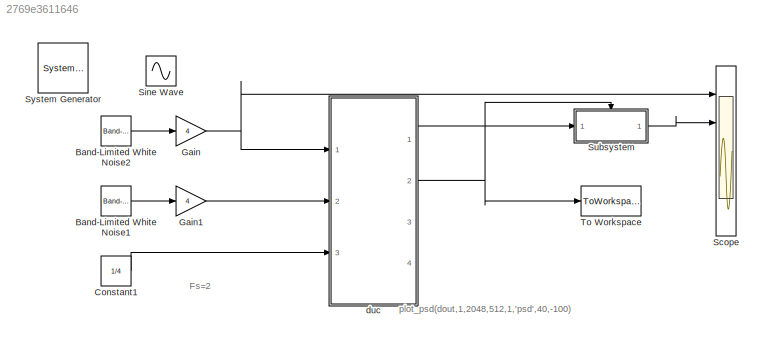
MODEL slx_2769e3611646
KIND model
CONFIG AbsTol = auto
CONFIG FixedStep = auto
CONFIG MaxStep = auto
CONFIG MinStep = auto
CONFIG RelTol = 1e-3
CONFIG SampleTimeConstraint = Unconstrained
CONFIG Solver = ode45
CONFIG SolverMode = Auto
CONFIG SolverName = ode45
CONFIG StartTime = 0.0
CONFIG StopTime = 16*4100
BLOCK [Reference]  System Generator  REF=xbsIndex_r4/ System Generator
  AttributesFormatString = System\nGenerator
  Impl_file = Vivado Implementation Defaults
  Ports = []
  SourceBlock = xbsIndex_r4/ System Generator
  SourceType = Xilinx System Generator Block
  Synth_file = Vivado Synthesis Defaults
  Tag = genX
  UserDataPersistent = on
  block_type = sysgen
  clock_wrapper = Clock Enables
  core_generation = According to Block Masks
  dbl_ovrd = According to Block Masks
  dcm_input_clock_period = 10
  deprecated_control = off
  directory = ./netlist
  eval_field = 0
  has_advanced_control = 0
  incr_netlist = off
  infoedit = System Generator
  package = clg484
  part = xc7z020
  proj_type = Vivado
  run_coregen = off
  sg_icon_stat = 50,50,0,0,token,white,0,58c5b5770fe5f7c311f53dbc6e73f0f6,right,,[ ],[ ]
  sg_mask_display = fprintf('','COMMENT: begin icon graphics');\npatch([0 50 50 0 0 ],[0 0 50 50 0 ],[1 1 1 ]);\npatch([1.6375 16.81 27.31 37.81 48.31 27.31 12.1375 1.6375 ],[36.655 36.655 47.155 36.655 47.155 47.155 47.155 36.655 ],[0.933333 0.203922 0.141176 ]);\npatch([12.1375 27.31 16.81 1.6375 12.1375 ],[26.155 26.155 36.655 36.655 26.155 ],[0.698039 0.0313725 0.219608 ]);\npatch([1.6375 16.81 27.31 12.1375 1.6375 ]...<+327ch>
  sggui_pos = 326,310,464,400
  simulink_period = 1
  speed = -1
  synthesis_tool = Vivado
  sysclk_period = 5
  testbench = off
  trim_vbits = Everywhere in SubSystem
  xilinxfamily = zynq
BLOCK [Reference] Band-Limited White Noise1  REF=simulink/Sources/Band-Limited
White Noise
  Cov = [0.1]
  Ports = [0, 1]
  SourceBlock = simulink/Sources/Band-Limited\nWhite Noise
  SourceType = Band-Limited White Noise.
  Ts = 16
  VectorParams1D = on
  seed = [1]
BLOCK [Reference] Band-Limited White Noise2  REF=simulink/Sources/Band-Limited
White Noise
  Cov = [0.1]
  Ports = [0, 1]
  SourceBlock = simulink/Sources/Band-Limited\nWhite Noise
  SourceType = Band-Limited White Noise.
  Ts = 16
  VectorParams1D = on
  seed = [2]
BLOCK [Constant] Constant1
  SampleTime = 16
  Value = 1/4
BLOCK [Gain] Gain
  Gain = 4
  OutDataTypeStr = Inherit: Inherit via internal rule
  ParamDataTypeStr = Inherit: Inherit via internal rule
  SaturateOnIntegerOverflow = off
BLOCK [Gain] Gain1
  Gain = 4
  OutDataTypeStr = Inherit: Inherit via internal rule
  ParamDataTypeStr = Inherit: Inherit via internal rule
  SaturateOnIntegerOverflow = off
BLOCK [Scope] Scope
  Floating = off
  LimitDataPoints = off
  NumInputPorts = 5
  Ports = [5]
  YMax = 5~5~5~5~5
  YMin = -5~-5~-5~-5~-5
  ZoomMode = xonly
BLOCK [Sin] Sine Wave
  Amplitude = 1.99
  Ports = [0, 1]
  SampleTime = 16
  Samples = 32
  SineType = Sample based
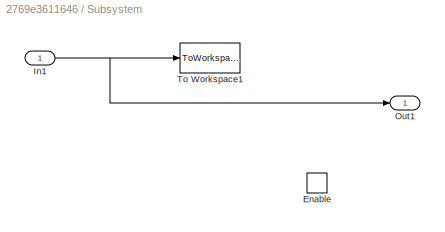
BLOCK [SubSystem] Subsystem
  Ports = [1, 1, 1]
  RequestExecContextInheritance = off
BLOCK [EnablePort] Subsystem/Enable
  Ports = []
BLOCK [Inport] Subsystem/In1
  IconDisplay = Port number
BLOCK [Outport] Subsystem/Out1
  IconDisplay = Port number
BLOCK [ToWorkspace] Subsystem/To Workspace1
  MaxDataPoints = inf
  Ports = [1]
  SampleTime = 1
  Save2DSignal = 3-D array (concatenate along third dimension)
  VariableName = dout
BLOCK [ToWorkspace] To Workspace
  FixptAsFi = on
  MaxDataPoints = inf
  Ports = [1]
  SampleTime = 1
  Save2DSignal = 3-D array (concatenate along third dimension)
  SaveFormat = Structure
  VariableName = vld
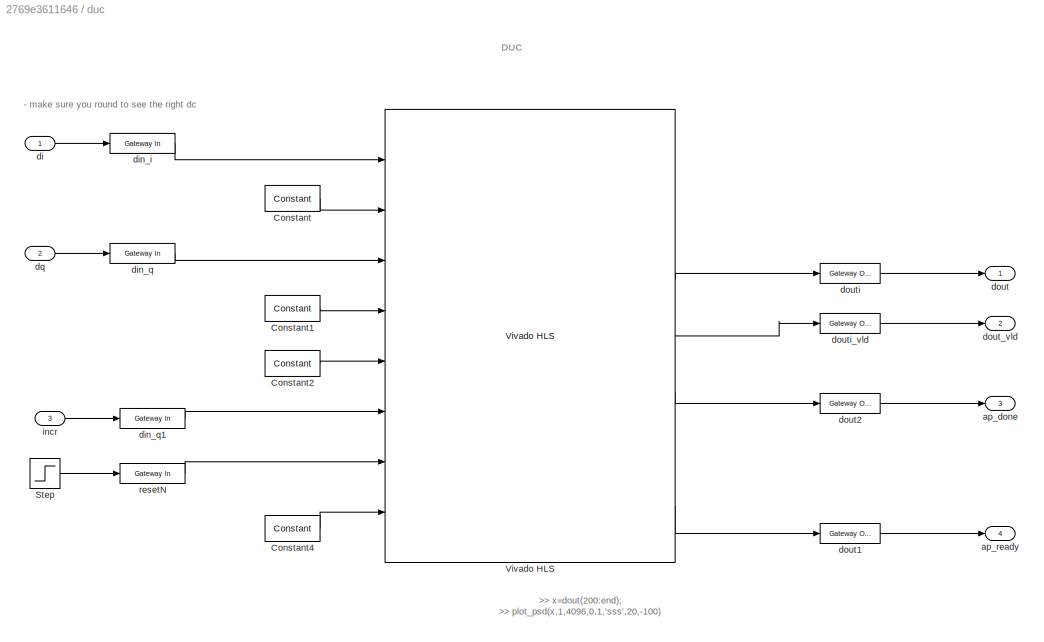
BLOCK [SubSystem] duc
  Ports = [3, 4]
  RequestExecContextInheritance = off
BLOCK [Reference] duc/Constant  REF=xbsIndex_r4/Constant
  Ports = [0, 1]
  SourceBlock = xbsIndex_r4/Constant
  SourceType = Xilinx Constant Block Block
  arith_type = Boolean
  bin_pt = 14
  block_type = constant
  carry = CIN
  const = 1
  dbl_ovrd = off
  dsp48_infoedit = The use of this block for DSP48 instructions is deprecated.  Please use the Opmode block.
  equ = P=C
  exp_width = 8
  explicit_period = on
  frac_width = 24
  gui_display_data_type = Boolean
  has_advanced_control = 0
  inp1 = P
  inp2 = PCIN>>17
  n_bits = 16
  opr = +
  opselect = C
  period = 1
  preci_type = Single
  sg_icon_stat = 55,26,0,1,white,blue,0,1c72b5be,right,,[ ],[ ]
  sg_mask_display = fprintf('','COMMENT: begin icon graphics');\npatch([0 55 55 0 0 ],[0 0 26 26 0 ],[0.77 0.82 0.91 ]);\nplot([0 55 55 0 0 ],[0 0 26 26 0 ]);\npatch([20.325 24.66 27.66 30.66 33.66 27.66 23.325 20.325 ],[16.33 16.33 19.33 16.33 19.33 19.33 19.33 16.33 ],[1 1 1 ]);\npatch([23.325 27.66 24.66 20.325 23.325 ],[13.33 13.33 16.33 16.33 13.33 ],[0.931 0.946 0.973 ]);\npatch([20.325 24.66 27.66 23.325 20.325 ],[...<+323ch>  <repeated x4 — deduplicated; at blocks: Constant, Constant1, Constant2, Constant4>
  sggui_pos = -1,-1,-1,-1
BLOCK [Reference] duc/Constant1  REF=xbsIndex_r4/Constant
  Ports = [0, 1]
  SourceBlock = xbsIndex_r4/Constant
  SourceType = Xilinx Constant Block Block
  arith_type = Boolean
  bin_pt = 14
  block_type = constant
  carry = CIN
  const = 1
  dbl_ovrd = off
  dsp48_infoedit = The use of this block for DSP48 instructions is deprecated.  Please use the Opmode block.
  equ = P=C
  exp_width = 8
  explicit_period = on
  frac_width = 24
  gui_display_data_type = Boolean
  has_advanced_control = 0
  inp1 = P
  inp2 = PCIN>>17
  n_bits = 16
  opr = +
  opselect = C
  period = 1
  preci_type = Single
  sg_icon_stat = 55,26,0,1,white,blue,0,1c72b5be,right,,[ ],[ ]
  sggui_pos = -1,-1,-1,-1
BLOCK [Reference] duc/Constant2  REF=xbsIndex_r4/Constant
  Ports = [0, 1]
  SourceBlock = xbsIndex_r4/Constant
  SourceType = Xilinx Constant Block Block
  arith_type = Boolean
  bin_pt = 14
  block_type = constant
  carry = CIN
  const = 1
  dbl_ovrd = off
  dsp48_infoedit = The use of this block for DSP48 instructions is deprecated.  Please use the Opmode block.
  equ = P=C
  exp_width = 8
  explicit_period = on
  frac_width = 24
  gui_display_data_type = Boolean
  has_advanced_control = 0
  inp1 = P
  inp2 = PCIN>>17
  n_bits = 16
  opr = +
  opselect = C
  period = 1
  preci_type = Single
  sg_icon_stat = 55,26,0,1,white,blue,0,1c72b5be,right,,[ ],[ ]
  sggui_pos = -1,-1,-1,-1
BLOCK [Reference] duc/Constant4  REF=xbsIndex_r4/Constant
  Ports = [0, 1]
  SourceBlock = xbsIndex_r4/Constant
  SourceType = Xilinx Constant Block Block
  arith_type = Boolean
  bin_pt = 14
  block_type = constant
  carry = CIN
  const = 1
  dbl_ovrd = off
  dsp48_infoedit = The use of this block for DSP48 instructions is deprecated.  Please use the Opmode block.
  equ = P=C
  exp_width = 8
  explicit_period = on
  frac_width = 24
  gui_display_data_type = Boolean
  has_advanced_control = 0
  inp1 = P
  inp2 = PCIN>>17
  n_bits = 16
  opr = +
  opselect = C
  period = 1
  preci_type = Single
  sg_icon_stat = 55,26,0,1,white,blue,0,1c72b5be,right,,[ ],[ ]
  sggui_pos = -1,-1,-1,-1
BLOCK [Step] duc/Step
  SampleTime = 1
  Time = 10
BLOCK [Reference] duc/Vivado HLS  REF=xbsIndex_r4/Vivado HLS
  Ports = [8, 7]
  SourceBlock = xbsIndex_r4/Vivado HLS
  SourceType = Xilinx High Level Synthesis Block
  anytable = '<path>'
  block_type = hls
  display_datatype = on
  fast_sim = on
  has_advanced_control = 0
  infoedit = This block allows including C,C++ and SystemC source files in System Generator for DSP designs.
  latency = 1
  model_file_path = ''
  rate_propagation_method = Simulink system period
  sg_icon_stat = 290,453,8,7,white,blue,0,630232e8,right,,[ ],[ ]
  sg_mask_display = fprintf('','COMMENT: begin icon graphics');\npatch([0 290 290 0 0 ],[0 0 453 453 0 ],[0.77 0.82 0.91 ]);\nplot([0 290 290 0 0 ],[0 0 453 453 0 ]);\npatch([53.775 113.02 154.02 195.02 236.02 154.02 94.775 53.775 ],[271.51 271.51 312.51 271.51 312.51 312.51 312.51 271.51 ],[1 1 1 ]);\npatch([94.775 154.02 113.02 53.775 94.775 ],[230.51 230.51 271.51 271.51 230.51 ],[0.931 0.946 0.973 ]);\npatch([53.775 1...<+1255ch>
  sggui_pos = 988,435,328,283
BLOCK [Outport] duc/ap_done
  IconDisplay = Port number
  Port = 3
BLOCK [Outport] duc/ap_ready
  IconDisplay = Port number
  Port = 4
BLOCK [Inport] duc/di
  IconDisplay = Port number
BLOCK [Reference] duc/din_i  REF=xbsIndex_r4/Gateway In
  ADCChannel = '1'
  LOCs = {}
  Ports = [1, 1]
  SourceBlock = xbsIndex_r4/Gateway In
  SourceType = Xilinx Gateway In Block
  UseAsADC = off
  address_offset = hex2dec('00')
  arith_type = Signed  (2's comp)
  automatic_assignment = on
  bin_pt = 14
  block_type = gatewayin
  columns = 1
  dbl_ovrd = off
  exp_width = 8
  frac_width = 24
  gui_display_data_type = Fixed-point
  has_advanced_control = 0
  hdl_port = on
  infoedit = Gateway in block.  Converts inputs of type Simulink integer, single, double and fixed-point to  Xilinx fixed-point or floating-point data type.<br><br>Hardware notes:  In hardware these blocks become top level input ports.  <repeated x4 — deduplicated; at blocks: din_i, din_q, din_q1, resetN>
  inherit_from_input = off
  interface = None
  intf_description = ''
  intf_name = ''
  io_standard = {}
  locs_specified = off
  n_bits = 24
  overflow = Wrap
  period = 1
  preci_type = Single
  quantization = Round  (unbiased: +/- Inf)
  rows = 1
  sg_icon_stat = 65,20,1,1,white,yellow,1,00d3666e,right,,[ ],[ ]
  sg_mask_display = fprintf('','COMMENT: begin icon graphics');\npatch([0 65 65 0 0 ],[0 0 20 20 0 ],[0.95 0.93 0.65 ]);\nplot([0 65 65 0 0 ],[0 0 20 20 0 ]);\npatch([27.55 30.44 32.44 34.44 36.44 32.44 29.55 27.55 ],[12.22 12.22 14.22 12.22 14.22 14.22 14.22 12.22 ],[1 1 1 ]);\npatch([29.55 32.44 30.44 27.55 29.55 ],[10.22 10.22 12.22 12.22 10.22 ],[0.985 0.979 0.895 ]);\npatch([27.55 30.44 32.44 29.55 27.55 ],[8.22 8.22...<+383ch>  <repeated x4 — deduplicated; at blocks: din_i, din_q, din_q1, resetN>
  sggui_pos = -1,-1,-1,-1
  timing_constraint = None
  xl_area = [0,0,0,0,0,0,0]
  xl_use_area = off
BLOCK [Reference] duc/din_q  REF=xbsIndex_r4/Gateway In
  ADCChannel = '1'
  LOCs = {}
  Ports = [1, 1]
  SourceBlock = xbsIndex_r4/Gateway In
  SourceType = Xilinx Gateway In Block
  UseAsADC = off
  address_offset = hex2dec('00')
  arith_type = Signed  (2's comp)
  automatic_assignment = on
  bin_pt = 14
  block_type = gatewayin
  columns = 1
  dbl_ovrd = off
  exp_width = 8
  frac_width = 24
  gui_display_data_type = Fixed-point
  has_advanced_control = 0
  hdl_port = on
  inherit_from_input = off
  interface = None
  intf_description = ''
  intf_name = ''
  io_standard = {}
  locs_specified = off
  n_bits = 24
  overflow = Wrap
  period = 1
  preci_type = Single
  quantization = Round  (unbiased: +/- Inf)
  rows = 1
  sg_icon_stat = 65,20,1,1,white,yellow,1,00d3666e,right,,[ ],[ ]
  sggui_pos = -1,-1,-1,-1
  timing_constraint = None
  xl_area = [0,0,0,0,0,0,0]
  xl_use_area = off
BLOCK [Reference] duc/din_q1  REF=xbsIndex_r4/Gateway In
  ADCChannel = '1'
  LOCs = {}
  Ports = [1, 1]
  SourceBlock = xbsIndex_r4/Gateway In
  SourceType = Xilinx Gateway In Block
  UseAsADC = off
  address_offset = hex2dec('00')
  arith_type = Signed  (2's comp)
  automatic_assignment = on
  bin_pt = 31
  block_type = gatewayin
  columns = 1
  dbl_ovrd = off
  exp_width = 8
  frac_width = 24
  gui_display_data_type = Fixed-point
  has_advanced_control = 0
  hdl_port = on
  inherit_from_input = off
  interface = None
  intf_description = ''
  intf_name = ''
  io_standard = {}
  locs_specified = off
  n_bits = 32
  overflow = Wrap
  period = 1
  preci_type = Single
  quantization = Round  (unbiased: +/- Inf)
  rows = 1
  sg_icon_stat = 65,20,1,1,white,yellow,1,00d3666e,right,,[ ],[ ]
  sggui_pos = -1,-1,-1,-1
  timing_constraint = None
  xl_area = [0,0,0,0,0,0,0]
  xl_use_area = off
BLOCK [Outport] duc/dout
  IconDisplay = Port number
BLOCK [Reference] duc/dout1  REF=xbsIndex_r4/Gateway Out
  DACChannel = '1'
  LOCs = {}
  Ports = [1, 1]
  SourceBlock = xbsIndex_r4/Gateway Out
  SourceType = Xilinx Gateway Out Block
  UseAsDAC = off
  address_offset = hex2dec('00')
  automatic_assignment = on
  block_type = gatewayout
  columns = 1
  has_advanced_control = 0
  hdl_port = on
  infoedit = Gateway out block.  Converts Xilinx fixed-point or floating-point type inputs into ouputs of type Simulink integer, single, double, or fixed-point.<br><br>Hardware notes:  In hardware these blocks become top level output ports or are discarded, depending on how they are configured.  <repeated x4 — deduplicated; at blocks: dout1, dout2, douti, douti_vld>
  inherit_from_input = off
  interface = None
  intf_description = ''
  intf_name = ''
  io_standard = {}
  locs_specified = off
  rows = 1
  sg_icon_stat = 60,20,1,1,white,yellow,1,cc31b7ac,right,,[ ],[ ]
  sg_mask_display = fprintf('','COMMENT: begin icon graphics');\npatch([0 60 60 0 0 ],[0 0 20 20 0 ],[0.95 0.93 0.65 ]);\nplot([0 60 60 0 0 ],[0 0 20 20 0 ]);\npatch([25.55 28.44 30.44 32.44 34.44 30.44 27.55 25.55 ],[12.22 12.22 14.22 12.22 14.22 14.22 14.22 12.22 ],[1 1 1 ]);\npatch([27.55 30.44 28.44 25.55 27.55 ],[10.22 10.22 12.22 12.22 10.22 ],[0.985 0.979 0.895 ]);\npatch([25.55 28.44 30.44 27.55 25.55 ],[8.22 8.22...<+384ch>  <repeated x4 — deduplicated; at blocks: dout1, dout2, douti, douti_vld>
  sggui_pos = -1,-1,-1,-1
  timing_constraint = None
  xl_area = [0,0,0,0,0,0,0]
  xl_use_area = off
BLOCK [Reference] duc/dout2  REF=xbsIndex_r4/Gateway Out
  DACChannel = '1'
  LOCs = {}
  Ports = [1, 1]
  SourceBlock = xbsIndex_r4/Gateway Out
  SourceType = Xilinx Gateway Out Block
  UseAsDAC = off
  address_offset = hex2dec('00')
  automatic_assignment = on
  block_type = gatewayout
  columns = 1
  has_advanced_control = 0
  hdl_port = on
  inherit_from_input = off
  interface = None
  intf_description = ''
  intf_name = ''
  io_standard = {}
  locs_specified = off
  rows = 1
  sg_icon_stat = 60,20,1,1,white,yellow,1,cc31b7ac,right,,[ ],[ ]
  sggui_pos = -1,-1,-1,-1
  timing_constraint = None
  xl_area = [0,0,0,0,0,0,0]
  xl_use_area = off
BLOCK [Outport] duc/dout_vld 
  IconDisplay = Port number
  Port = 2
BLOCK [Reference] duc/douti  REF=xbsIndex_r4/Gateway Out
  DACChannel = '1'
  LOCs = {}
  Ports = [1, 1]
  SourceBlock = xbsIndex_r4/Gateway Out
  SourceType = Xilinx Gateway Out Block
  UseAsDAC = off
  address_offset = hex2dec('00')
  automatic_assignment = on
  block_type = gatewayout
  columns = 1
  has_advanced_control = 0
  hdl_port = on
  inherit_from_input = off
  interface = None
  intf_description = ''
  intf_name = ''
  io_standard = {}
  locs_specified = off
  rows = 1
  sg_icon_stat = 60,20,1,1,white,yellow,1,cc31b7ac,right,,[ ],[ ]
  sggui_pos = -1,-1,-1,-1
  timing_constraint = None
  xl_area = [0,0,0,0,0,0,0]
  xl_use_area = off
BLOCK [Reference] duc/douti_vld  REF=xbsIndex_r4/Gateway Out
  DACChannel = '1'
  LOCs = {}
  Ports = [1, 1]
  SourceBlock = xbsIndex_r4/Gateway Out
  SourceType = Xilinx Gateway Out Block
  UseAsDAC = off
  address_offset = hex2dec('00')
  automatic_assignment = on
  block_type = gatewayout
  columns = 1
  has_advanced_control = 0
  hdl_port = on
  inherit_from_input = off
  interface = None
  intf_description = ''
  intf_name = ''
  io_standard = {}
  locs_specified = off
  rows = 1
  sg_icon_stat = 60,20,1,1,white,yellow,1,cc31b7ac,right,,[ ],[ ]
  sggui_pos = -1,-1,-1,-1
  timing_constraint = None
  xl_area = [0,0,0,0,0,0,0]
  xl_use_area = off
BLOCK [Inport] duc/dq
  IconDisplay = Port number
  Port = 2
BLOCK [Inport] duc/incr
  IconDisplay = Port number
  Port = 3
BLOCK [Reference] duc/resetN  REF=xbsIndex_r4/Gateway In
  ADCChannel = '1'
  LOCs = {}
  Ports = [1, 1]
  SourceBlock = xbsIndex_r4/Gateway In
  SourceType = Xilinx Gateway In Block
  UseAsADC = off
  address_offset = hex2dec('00')
  arith_type = Boolean
  automatic_assignment = on
  bin_pt = 0
  block_type = gatewayin
  columns = 1
  dbl_ovrd = off
  exp_width = 8
  frac_width = 24
  gui_display_data_type = Boolean
  has_advanced_control = 0
  hdl_port = on
  inherit_from_input = off
  interface = None
  intf_description = ''
  intf_name = ''
  io_standard = {}
  locs_specified = off
  n_bits = 16
  overflow = Wrap
  period = 1
  preci_type = Single
  quantization = Truncate
  rows = 1
  sg_icon_stat = 65,20,1,1,white,yellow,1,00d3666e,right,,[ ],[ ]
  sggui_pos = -1,-1,-1,-1
  timing_constraint = None
  xl_area = [0,0,0,0,0,0,0]
  xl_use_area = off
ANNOTATION (root): Fs=2
ANNOTATION (root): plot_psd(dout,1,2048,512,1,'psd',40,-100)
ANNOTATION duc: - make sure you round to see the right dc
ANNOTATION duc: DUC
ANNOTATION duc: >> x=dout(200:end); >> plot_psd(x,1,4096,0,1,'sss',20,-100)
LINE Band-Limited White Noise1:1 -> Gain1:1
LINE Band-Limited White Noise2:1 -> Gain:1
LINE Constant1:1 -> duc:3
LINE Gain1:1 -> duc:2
NET Gain:1 -> Scope:1, duc:1
NET Subsystem/In1:1 -> Subsystem/Out1:1, Subsystem/To Workspace1:1
LINE Subsystem:1 -> Scope:2
LINE duc/Constant1:1 -> duc/Vivado HLS:4
LINE duc/Constant2:1 -> duc/Vivado HLS:5
LINE duc/Constant4:1 -> duc/Vivado HLS:8
LINE duc/Constant:1 -> duc/Vivado HLS:2
LINE duc/Step:1 -> duc/resetN:1
LINE duc/Vivado HLS:3 -> duc/douti:1
LINE duc/Vivado HLS:4 -> duc/douti_vld:1
LINE duc/Vivado HLS:5 -> duc/dout2:1
LINE duc/Vivado HLS:7 -> duc/dout1:1
LINE duc/di:1 -> duc/din_i:1
LINE duc/din_i:1 -> duc/Vivado HLS:1
LINE duc/din_q1:1 -> duc/Vivado HLS:6
LINE duc/din_q:1 -> duc/Vivado HLS:3
LINE duc/dout1:1 -> duc/ap_ready:1
LINE duc/dout2:1 -> duc/ap_done:1
LINE duc/douti:1 -> duc/dout:1
LINE duc/douti_vld:1 -> duc/dout_vld :1
LINE duc/dq:1 -> duc/din_q:1
LINE duc/incr:1 -> duc/din_q1:1
LINE duc/resetN:1 -> duc/Vivado HLS:7
LINE duc:1 -> Subsystem:1
NET duc:2 -> Subsystem:enable, To Workspace:1
note: NET lines group one-source signal fan-out (src -> all destinations, sorted); 1:1 wires keep LINE
note: 1 file-system path scrubbed to <path> (not preserved elsewhere — flat text is the only slx artifact)
